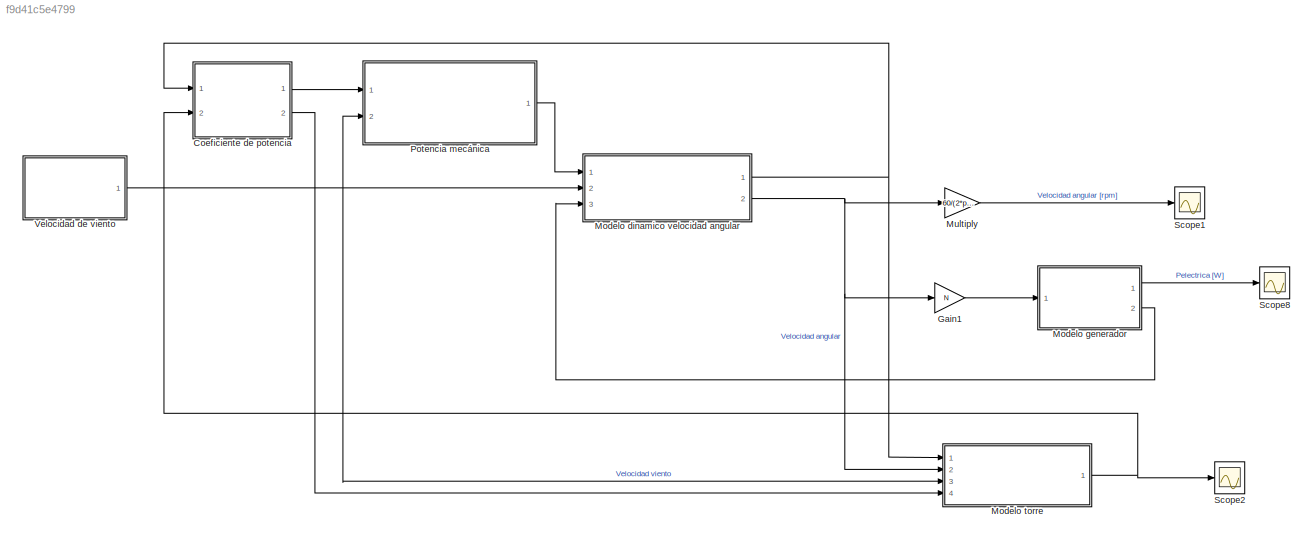
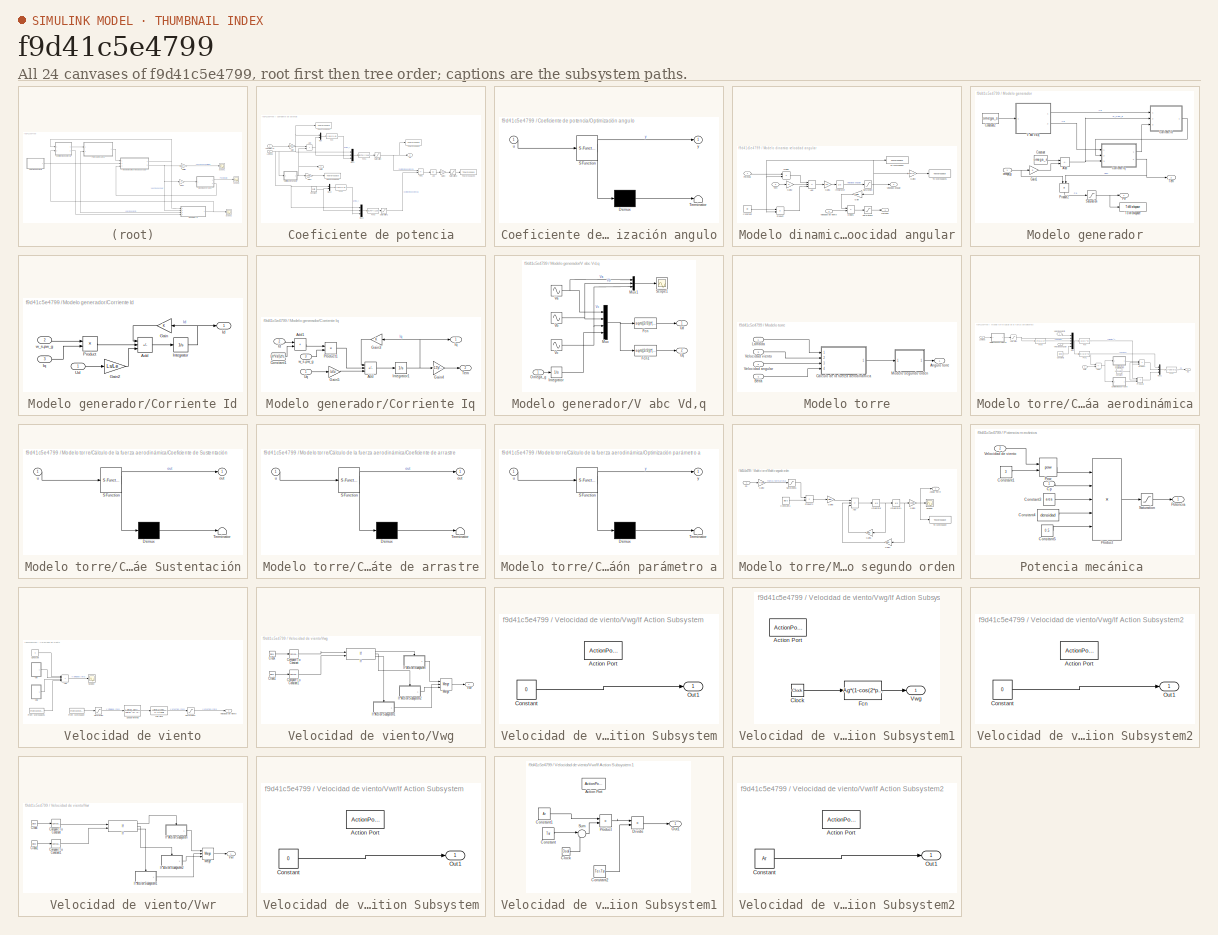
[diagram: thumbnail index - all 24 canvases of the model, root first then tree order]
MODEL slx_f9d41c5e4799
KIND model
CONFIG AbsTol = auto
CONFIG EnableMultiTasking = off
CONFIG FixedStep = auto
CONFIG MaxStep = 0.001
CONFIG MinStep = auto
CONFIG RelTol = 1e-7
CONFIG SampleTimeConstraint = Unconstrained
CONFIG SolverName = VariableStepAuto
CONFIG StartTime = 0.0
CONFIG StopTime = 1800
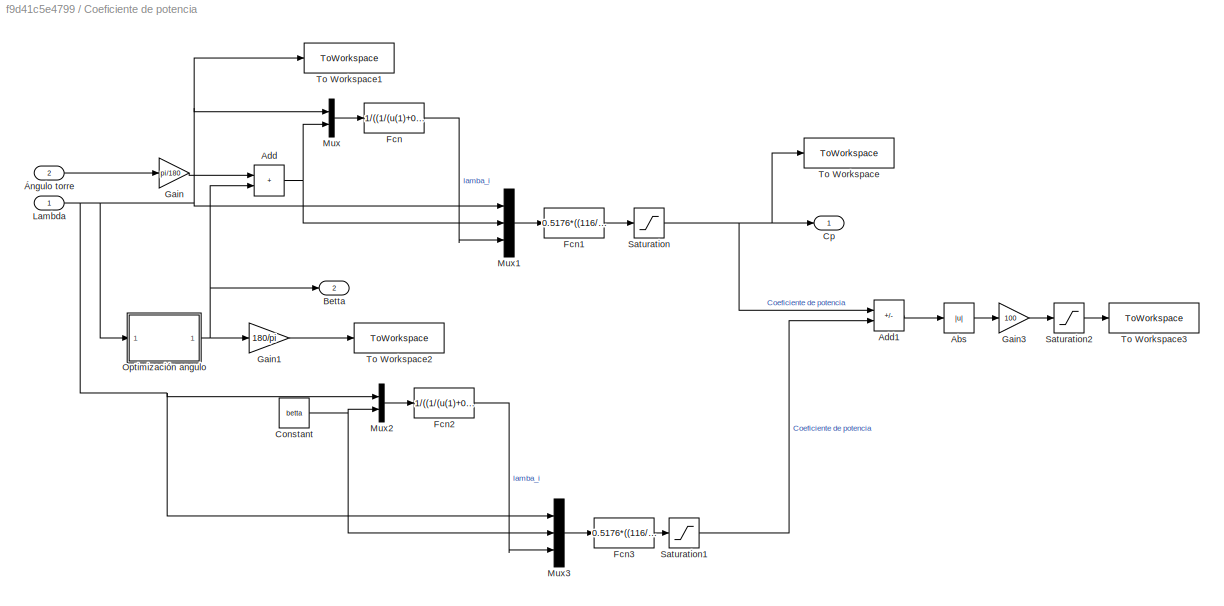
BLOCK [SubSystem] Coeficiente de potencia
  Ports = [2, 2]
  RequestExecContextInheritance = off
BLOCK [Abs] Coeficiente de potencia/Abs
  SaturateOnIntegerOverflow = off
BLOCK [Sum] Coeficiente de potencia/Add
  IconShape = rectangular
  Ports = [2, 1]
BLOCK [Sum] Coeficiente de potencia/Add1
  IconShape = rectangular
  Inputs = +-
  Ports = [2, 1]
BLOCK [Outport] Coeficiente de potencia/Betta
  Port = 2
BLOCK [Constant] Coeficiente de potencia/Constant
  Value = betta
BLOCK [Outport] Coeficiente de potencia/Cp
BLOCK [Fcn] Coeficiente de potencia/Fcn
  Expr = 1/((1/(u(1)+0.08*u(2)))-(0.035/(1+u(2)^3)))
BLOCK [Fcn] Coeficiente de potencia/Fcn1
  Expr = 0.5176*((116/u(3))-0.4*u(2)-5)*exp(-21/u(3))+0.0068*u(1)
BLOCK [Fcn] Coeficiente de potencia/Fcn2
  Expr = 1/((1/(u(1)+0.08*u(2)))-(0.035/(1+u(2)^3)))
BLOCK [Fcn] Coeficiente de potencia/Fcn3
  Expr = 0.5176*((116/u(3))-0.4*u(2)-5)*exp(-21/u(3))+0.0068*u(1)
BLOCK [Gain] Coeficiente de potencia/Gain
  Gain = pi/180
BLOCK [Gain] Coeficiente de potencia/Gain1
  Gain = 180/pi
BLOCK [Gain] Coeficiente de potencia/Gain3
  Gain = 100
BLOCK [Inport] Coeficiente de potencia/Lambda
BLOCK [Mux] Coeficiente de potencia/Mux
  DisplayOption = bar
  Inputs = 2
  Ports = [2, 1]
BLOCK [Mux] Coeficiente de potencia/Mux1
  DisplayOption = bar
  Inputs = 3
  Ports = [3, 1]
BLOCK [Mux] Coeficiente de potencia/Mux2
  DisplayOption = bar
  Inputs = 2
  Ports = [2, 1]
BLOCK [Mux] Coeficiente de potencia/Mux3
  DisplayOption = bar
  Inputs = 3
  Ports = [3, 1]
BLOCK [SubSystem] Coeficiente de potencia/Optimización angulo
  ErrorFcn = Stateflow.Translate.translate
  PermitHierarchicalResolution = ExplicitOnly
  Ports = [1, 1]
  RequestExecContextInheritance = off
  SFBlockType = MATLAB Function
  TreatAsAtomicUnit = on
BLOCK [Demux] Coeficiente de potencia/Optimización angulo/ Demux 
  Outputs = 1
  Ports = [1, 1]
BLOCK [S-Function] Coeficiente de potencia/Optimización angulo/ SFunction 
  EnableBusSupport = on
  FunctionName = sf_sfun
  PortCounts = [1 2]
  Ports = [1, 2]
  SFcnIsStateOwnerBlock = off
  SFunctionDeploymentMode = off
  Tag = Stateflow S-Function 1
BLOCK [Terminator] Coeficiente de potencia/Optimización angulo/ Terminator 
BLOCK [Inport] Coeficiente de potencia/Optimización angulo/u
BLOCK [Outport] Coeficiente de potencia/Optimización angulo/y
BLOCK [Saturate] Coeficiente de potencia/Saturation
  LowerLimit = 0
  UpperLimit = 0.6
BLOCK [Saturate] Coeficiente de potencia/Saturation1
  LowerLimit = 0
  UpperLimit = 0.6
BLOCK [Saturate] Coeficiente de potencia/Saturation2
  LowerLimit = 0
  UpperLimit = 0.3
BLOCK [ToWorkspace] Coeficiente de potencia/To Workspace
  FixptAsFi = on
  MaxDataPoints = inf
  Ports = [1]
  SampleTime = -1
  SaveFormat = Timeseries
  VariableName = cp
BLOCK [ToWorkspace] Coeficiente de potencia/To Workspace1
  FixptAsFi = on
  MaxDataPoints = inf
  Ports = [1]
  SampleTime = -1
  SaveFormat = Timeseries
  VariableName = lambda
BLOCK [ToWorkspace] Coeficiente de potencia/To Workspace2
  FixptAsFi = on
  MaxDataPoints = inf
  Ports = [1]
  SampleTime = -1
  SaveFormat = Timeseries
  VariableName = angulopala
BLOCK [ToWorkspace] Coeficiente de potencia/To Workspace3
  FixptAsFi = on
  MaxDataPoints = inf
  Ports = [1]
  SampleTime = -1
  SaveFormat = Timeseries
  VariableName = ganancia
BLOCK [Inport] Coeficiente de potencia/Ángulo torre
  Port = 2
BLOCK [Gain] Gain1
  Gain = N
BLOCK [SubSystem] Modelo dinamico velocidad angular
  Ports = [3, 2]
  RequestExecContextInheritance = off
BLOCK [Sum] Modelo dinamico velocidad angular/Add
  IconShape = rectangular
  Inputs = +--
  Ports = [3, 1]
BLOCK [Constant] Modelo dinamico velocidad angular/Constant
  Value = Bt
BLOCK [Product] Modelo dinamico velocidad angular/Divide
  Inputs = */
  Ports = [2, 1]
BLOCK [Product] Modelo dinamico velocidad angular/Divide1
  Inputs = */
  Ports = [2, 1]
BLOCK [Gain] Modelo dinamico velocidad angular/Gain
  Gain = radio
  NameLocation = top
BLOCK [Gain] Modelo dinamico velocidad angular/Gain1
  Gain = 1/Jt
BLOCK [Gain] Modelo dinamico velocidad angular/Gain2
  Gain = N
BLOCK [Gain] Modelo dinamico velocidad angular/Gain3
  Gain = 60/(2*pi)
BLOCK [Integrator] Modelo dinamico velocidad angular/Integrator
  InitialCondition = 0.1
  Ports = [1, 1]
BLOCK [Outport] Modelo dinamico velocidad angular/Lambda
BLOCK [Inport] Modelo dinamico velocidad angular/Potencia
BLOCK [Product] Modelo dinamico velocidad angular/Product
  Ports = [2, 1]
BLOCK [Saturate] Modelo dinamico velocidad angular/Saturation
  LowerLimit = 0.0001
  UpperLimit = 6
BLOCK [Saturate] Modelo dinamico velocidad angular/Saturation1
  LowerLimit = 0
  UpperLimit = 30
BLOCK [Inport] Modelo dinamico velocidad angular/Tem
  Port = 3
BLOCK [ToWorkspace] Modelo dinamico velocidad angular/To Workspace
  FixptAsFi = on
  MaxDataPoints = inf
  Ports = [1]
  SampleTime = -1
  SaveFormat = Timeseries
  VariableName = velocidad
BLOCK [ToWorkspace] Modelo dinamico velocidad angular/To Workspace1
  FixptAsFi = on
  MaxDataPoints = inf
  Ports = [1]
  SampleTime = -1
  SaveFormat = Timeseries
  VariableName = velocidadrpm
BLOCK [Outport] Modelo dinamico velocidad angular/Velocidad angular
  Port = 2
BLOCK [Inport] Modelo dinamico velocidad angular/Velocidad de viento
  Port = 2
BLOCK [SubSystem] Modelo generador
  Ports = [1, 2]
  RequestExecContextInheritance = off
BLOCK [Sum] Modelo generador/Add
  IconShape = rectangular
  Inputs = +-
  Ports = [2, 1]
BLOCK [Constant] Modelo generador/Constant
  Value = omega_s
BLOCK [Constant] Modelo generador/Constant2
  Value = omega_s
BLOCK [SubSystem] Modelo generador/Corriente Id
  Ports = [3, 1]
  RequestExecContextInheritance = off
BLOCK [Sum] Modelo generador/Corriente Id/Add
  IconShape = rectangular
  Inputs = -++
  Ports = [3, 1]
BLOCK [Gain] Modelo generador/Corriente Id/Gain
  Gain = K
  NameLocation = top
BLOCK [Gain] Modelo generador/Corriente Id/Gain2
  Gain = Ls/Le
BLOCK [Outport] Modelo generador/Corriente Id/Id
BLOCK [Integrator] Modelo generador/Corriente Id/Integrator
  Ports = [1, 1]
BLOCK [Inport] Modelo generador/Corriente Id/Iq
  Port = 3
BLOCK [Product] Modelo generador/Corriente Id/Product
  Ports = [2, 1]
BLOCK [Inport] Modelo generador/Corriente Id/Ud
BLOCK [Inport] Modelo generador/Corriente Id/w_s-pw_g
  Port = 2
BLOCK [SubSystem] Modelo generador/Corriente Iq
  Ports = [3, 2]
  RequestExecContextInheritance = off
BLOCK [Sum] Modelo generador/Corriente Iq/Add
  IconShape = rectangular
  Inputs = --+
  Ports = [3, 1]
BLOCK [Sum] Modelo generador/Corriente Iq/Add1
  IconShape = rectangular
  Ports = [2, 1]
BLOCK [Constant] Modelo generador/Corriente Iq/Constant1
  Value = Lm*Vs/(Le*omega_s)
BLOCK [Gain] Modelo generador/Corriente Iq/Gain3
  Gain = K
  NameLocation = top
BLOCK [Gain] Modelo generador/Corriente Iq/Gain4
  Gain = -1.5*p*Vs*Lm/(omega_s*Ls)
BLOCK [Gain] Modelo generador/Corriente Iq/Gain5
  Gain = Ls/Le
BLOCK [Inport] Modelo generador/Corriente Iq/Id
  NameLocation = top
  Port = 2
BLOCK [Integrator] Modelo generador/Corriente Iq/Integrator1
  Ports = [1, 1]
BLOCK [Outport] Modelo generador/Corriente Iq/Iq
BLOCK [Product] Modelo generador/Corriente Iq/Product1
  Ports = [2, 1]
BLOCK [Outport] Modelo generador/Corriente Iq/Tem
  Port = 2
BLOCK [Inport] Modelo generador/Corriente Iq/Uq
BLOCK [Inport] Modelo generador/Corriente Iq/w_s-pw_g
  Port = 3
BLOCK [Gain] Modelo generador/Gain1
  Gain = p
BLOCK [Outport] Modelo generador/Pe
BLOCK [Product] Modelo generador/Product2
  NameLocation = left
  Ports = [2, 1]
BLOCK [Saturate] Modelo generador/Saturation
  LowerLimit = 0
  UpperLimit = 100e6
BLOCK [Outport] Modelo generador/Tem
  Port = 2
BLOCK [ToWorkspace] Modelo generador/To Workspace
  FixptAsFi = on
  MaxDataPoints = inf
  Ports = [1]
  SampleTime = -1
  SaveFormat = Timeseries
  VariableName = potencia
BLOCK [SubSystem] Modelo generador/V abc Vd,q
  Ports = [1, 2]
  RequestExecContextInheritance = off
BLOCK [Fcn] Modelo generador/V abc Vd,q/Fcn
  Expr = sqrt((2/3))*(u(1)*cos(u(4))+u(2)*cos(u(4)-2*pi/3)+u(3)*cos(u(4)+2*pi/3))
BLOCK [Fcn] Modelo generador/V abc Vd,q/Fcn1
  Expr = sqrt((2/3))*(-u(1)*sin(u(4))-u(2)*sin(u(4)-2*pi/3)-u(3)*sin(u(4)+2*pi/3))
BLOCK [Integrator] Modelo generador/V abc Vd,q/Integrator
  Ports = [1, 1]
BLOCK [Mux] Modelo generador/V abc Vd,q/Mux
  DisplayOption = bar
  Ports = [4, 1]
BLOCK [Mux] Modelo generador/V abc Vd,q/Mux1
  DisplayOption = bar
  Inputs = 3
  Ports = [3, 1]
BLOCK [Inport] Modelo generador/V abc Vd,q/Omega_g
BLOCK [Scope] Modelo generador/V abc Vd,q/Scope1
  Floating = off
  NumInputPorts = 1
  Ports = [1]
  ScopeSpecificationString = Simulink.scopes.TimeScopeBlockCfg('CurrentConfiguration', extmgr.ConfigurationSet(extmgr.Configuration('Core','General UI',true,'FigureColor',[1 1 1]),extmgr.Configuration('Core','Source UI',true),extmgr.Configuration('Sources','WiredSimulink',true,'DataLoggingVariableName','ScopeData1'),extmgr.Configuration('Visuals','Time Domain',true,'TimeAxisLabels','All','SerializedDisplays',{struct('MinYLimR...<+1588ch>
BLOCK [Outport] Modelo generador/V abc Vd,q/Ud
BLOCK [Outport] Modelo generador/V abc Vd,q/Uq
  Port = 2
BLOCK [Sin] Modelo generador/V abc Vd,q/Va
  Amplitude = Vs
  Frequency = omega_s
  Ports = [0, 1]
  SampleTime = 0
BLOCK [Sin] Modelo generador/V abc Vd,q/Vb
  Amplitude = Vs
  Frequency = omega_s
  Phase = -2*pi/3
  Ports = [0, 1]
  SampleTime = 0
BLOCK [Sin] Modelo generador/V abc Vd,q/Vc
  Amplitude = Vs
  Frequency = omega_s
  Phase = 2*pi/3
  Ports = [0, 1]
  SampleTime = 0
BLOCK [Inport] Modelo generador/omega_g
BLOCK [SubSystem] Modelo torre
  Ports = [4, 1]
  RequestExecContextInheritance = off
BLOCK [Inport] Modelo torre/Betta
  Port = 4
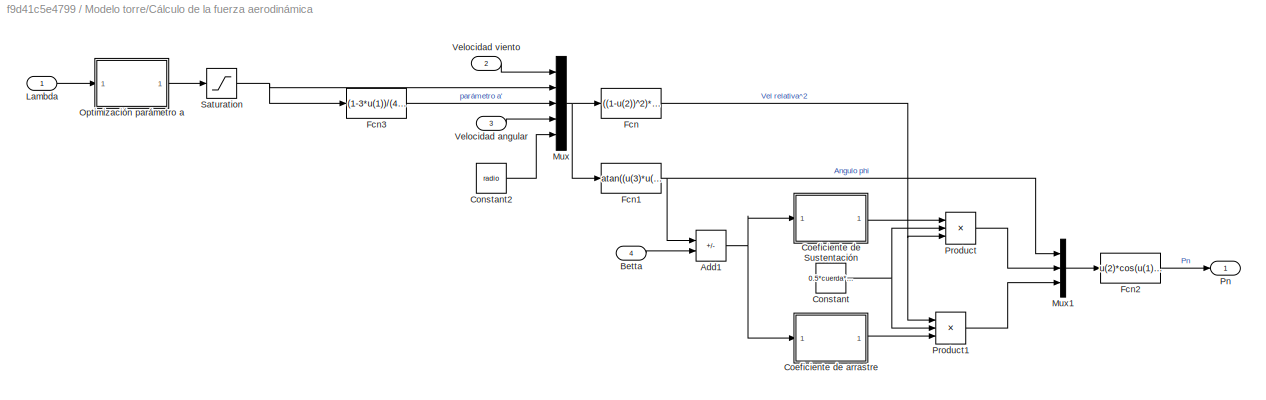
BLOCK [SubSystem] Modelo torre/Cálculo de la fuerza aerodinámica
  Ports = [4, 1]
  RequestExecContextInheritance = off
BLOCK [Sum] Modelo torre/Cálculo de la fuerza aerodinámica/Add1
  IconShape = rectangular
  Inputs = +-
  Ports = [2, 1]
BLOCK [Inport] Modelo torre/Cálculo de la fuerza aerodinámica/Betta
  Port = 4
BLOCK [SubSystem] Modelo torre/Cálculo de la fuerza aerodinámica/Coeficiente de Sustentación
  ErrorFcn = Stateflow.Translate.translate
  PermitHierarchicalResolution = ExplicitOnly
  Ports = [1, 1]
  RequestExecContextInheritance = off
  SFBlockType = MATLAB Function
  TreatAsAtomicUnit = on
BLOCK [Demux] Modelo torre/Cálculo de la fuerza aerodinámica/Coeficiente de Sustentación/ Demux 
  Outputs = 1
  Ports = [1, 1]
BLOCK [S-Function] Modelo torre/Cálculo de la fuerza aerodinámica/Coeficiente de Sustentación/ SFunction 
  EnableBusSupport = on
  FunctionName = sf_sfun
  PortCounts = [1 2]
  Ports = [1, 2]
  SFcnIsStateOwnerBlock = off
  SFunctionDeploymentMode = off
  Tag = Stateflow S-Function 3
BLOCK [Terminator] Modelo torre/Cálculo de la fuerza aerodinámica/Coeficiente de Sustentación/ Terminator 
BLOCK [Outport] Modelo torre/Cálculo de la fuerza aerodinámica/Coeficiente de Sustentación/out
BLOCK [Inport] Modelo torre/Cálculo de la fuerza aerodinámica/Coeficiente de Sustentación/u
BLOCK [SubSystem] Modelo torre/Cálculo de la fuerza aerodinámica/Coeficiente de arrastre
  ErrorFcn = Stateflow.Translate.translate
  PermitHierarchicalResolution = ExplicitOnly
  Ports = [1, 1]
  RequestExecContextInheritance = off
  SFBlockType = MATLAB Function
  TreatAsAtomicUnit = on
BLOCK [Demux] Modelo torre/Cálculo de la fuerza aerodinámica/Coeficiente de arrastre/ Demux 
  Outputs = 1
  Ports = [1, 1]
BLOCK [S-Function] Modelo torre/Cálculo de la fuerza aerodinámica/Coeficiente de arrastre/ SFunction 
  EnableBusSupport = on
  FunctionName = sf_sfun
  PortCounts = [1 2]
  Ports = [1, 2]
  SFcnIsStateOwnerBlock = off
  SFunctionDeploymentMode = off
  Tag = Stateflow S-Function 4
BLOCK [Terminator] Modelo torre/Cálculo de la fuerza aerodinámica/Coeficiente de arrastre/ Terminator 
BLOCK [Outport] Modelo torre/Cálculo de la fuerza aerodinámica/Coeficiente de arrastre/out
BLOCK [Inport] Modelo torre/Cálculo de la fuerza aerodinámica/Coeficiente de arrastre/u
BLOCK [Constant] Modelo torre/Cálculo de la fuerza aerodinámica/Constant
  Value = 0.5*cuerda*densidad
BLOCK [Constant] Modelo torre/Cálculo de la fuerza aerodinámica/Constant2
  Value = radio
BLOCK [Fcn] Modelo torre/Cálculo de la fuerza aerodinámica/Fcn
  Expr = ((1-u(2))^2)*(u(1))^2+((1+u(3))^2)*(u(4)*u(5))^2
BLOCK [Fcn] Modelo torre/Cálculo de la fuerza aerodinámica/Fcn1
  Expr = atan((u(3)*u(4)*u(5))/(u(2)*u(1)))
BLOCK [Fcn] Modelo torre/Cálculo de la fuerza aerodinámica/Fcn2
  Expr = u(2)*cos(u(1))+u(3)*sin(u(1))
BLOCK [Fcn] Modelo torre/Cálculo de la fuerza aerodinámica/Fcn3
  Expr = (1-3*u(1))/(4*u(1)-1)
BLOCK [Inport] Modelo torre/Cálculo de la fuerza aerodinámica/Lambda
BLOCK [Mux] Modelo torre/Cálculo de la fuerza aerodinámica/Mux
  DisplayOption = bar
  Inputs = 5
  Ports = [5, 1]
BLOCK [Mux] Modelo torre/Cálculo de la fuerza aerodinámica/Mux1
  DisplayOption = bar
  Inputs = 3
  Ports = [3, 1]
BLOCK [SubSystem] Modelo torre/Cálculo de la fuerza aerodinámica/Optimización parámetro a
  ErrorFcn = Stateflow.Translate.translate
  PermitHierarchicalResolution = ExplicitOnly
  Ports = [1, 1]
  RequestExecContextInheritance = off
  SFBlockType = MATLAB Function
  TreatAsAtomicUnit = on
BLOCK [Demux] Modelo torre/Cálculo de la fuerza aerodinámica/Optimización parámetro a/ Demux 
  Outputs = 1
  Ports = [1, 1]
BLOCK [S-Function] Modelo torre/Cálculo de la fuerza aerodinámica/Optimización parámetro a/ SFunction 
  EnableBusSupport = on
  FunctionName = sf_sfun
  PortCounts = [1 2]
  Ports = [1, 2]
  SFcnIsStateOwnerBlock = off
  SFunctionDeploymentMode = off
  Tag = Stateflow S-Function 2
BLOCK [Terminator] Modelo torre/Cálculo de la fuerza aerodinámica/Optimización parámetro a/ Terminator 
BLOCK [Inport] Modelo torre/Cálculo de la fuerza aerodinámica/Optimización parámetro a/u
BLOCK [Outport] Modelo torre/Cálculo de la fuerza aerodinámica/Optimización parámetro a/y
BLOCK [Outport] Modelo torre/Cálculo de la fuerza aerodinámica/Pn
BLOCK [Product] Modelo torre/Cálculo de la fuerza aerodinámica/Product
  Inputs = 3
  Ports = [3, 1]
BLOCK [Product] Modelo torre/Cálculo de la fuerza aerodinámica/Product1
  Inputs = 3
  Ports = [3, 1]
BLOCK [Saturate] Modelo torre/Cálculo de la fuerza aerodinámica/Saturation
  LowerLimit = 0.001
  UpperLimit = 1
BLOCK [Inport] Modelo torre/Cálculo de la fuerza aerodinámica/Velocidad angular
  Port = 3
BLOCK [Inport] Modelo torre/Cálculo de la fuerza aerodinámica/Velocidad viento
  Port = 2
BLOCK [Inport] Modelo torre/Lambda
BLOCK [SubSystem] Modelo torre/Modelo segundo orden
  Ports = [1, 1]
  RequestExecContextInheritance = off
BLOCK [Sum] Modelo torre/Modelo segundo orden/Add
  IconShape = rectangular
  Inputs = +--
  Ports = [3, 1]
BLOCK [Constant] Modelo torre/Modelo segundo orden/Constant1
  Value = altura
BLOCK [Gain] Modelo torre/Modelo segundo orden/Gain2
  Gain = 3*radio
BLOCK [Gain] Modelo torre/Modelo segundo orden/Gain3
  Gain = 180/pi
BLOCK [Gain] Modelo torre/Modelo segundo orden/Gain4
  Gain = ktotal/Itotal
  NameLocation = top
BLOCK [Gain] Modelo torre/Modelo segundo orden/Gain5
  Gain = dtotal/Itotal
  NameLocation = top
BLOCK [Gain] Modelo torre/Modelo segundo orden/Gain6
  Gain = 1/Itotal
BLOCK [Integrator] Modelo torre/Modelo segundo orden/Integrator
  Ports = [1, 1]
BLOCK [Integrator] Modelo torre/Modelo segundo orden/Integrator1
  Ports = [1, 1]
BLOCK [Inport] Modelo torre/Modelo segundo orden/Pn
BLOCK [Product] Modelo torre/Modelo segundo orden/Product2
  Ports = [2, 1]
BLOCK [Saturate] Modelo torre/Modelo segundo orden/Saturation1
  LowerLimit = 0
  UpperLimit = 1e9
BLOCK [Scope] Modelo torre/Modelo segundo orden/Scope5
  Floating = off
  NumInputPorts = 1
  Ports = [1]
  ScopeSpecificationString = Simulink.scopes.TimeScopeBlockCfg('CurrentConfiguration', extmgr.ConfigurationSet(extmgr.Configuration('Core','General UI',true,'FigureColor',[1 1 1]),extmgr.Configuration('Core','Source UI',true),extmgr.Configuration('Sources','WiredSimulink',true,'DataLoggingVariableName','ScopeData5'),extmgr.Configuration('Visuals','Time Domain',true,'TimeAxisLabels','All','SerializedDisplays',{struct('MinYLimR...<+1645ch>
BLOCK [ToWorkspace] Modelo torre/Modelo segundo orden/To Workspace
  FixptAsFi = on
  MaxDataPoints = inf
  Ports = [1]
  SampleTime = -1
  SaveFormat = Timeseries
  VariableName = angulotorre
BLOCK [Outport] Modelo torre/Modelo segundo orden/Ángulo Torre
BLOCK [Inport] Modelo torre/Velocidad angular
  Port = 2
BLOCK [Inport] Modelo torre/Velocidad viento
  Port = 3
BLOCK [Outport] Modelo torre/Ángulo torre
BLOCK [Gain] Multiply
  Gain = 60/(2*pi)
BLOCK [SubSystem] Potencia mecánica 
  Ports = [2, 1]
  RequestExecContextInheritance = off
BLOCK [Constant] Potencia mecánica /Constant1
  Value = 3
BLOCK [Constant] Potencia mecánica /Constant3
  Value = area
BLOCK [Constant] Potencia mecánica /Constant4
  Value = densidad
BLOCK [Constant] Potencia mecánica /Constant5
  Value = 0.5
BLOCK [Inport] Potencia mecánica /Cp
BLOCK [Outport] Potencia mecánica /Potencia
BLOCK [Math] Potencia mecánica /Pow
  Operator = pow
  Ports = [2, 1]
  RndMeth = Zero
  SignedPower = on
BLOCK [Product] Potencia mecánica /Product
  Inputs = 5
  Ports = [5, 1]
BLOCK [Saturate] Potencia mecánica /Saturation
  LowerLimit = 0
  UpperLimit = 10e6
BLOCK [Inport] Potencia mecánica /Velocidad de viento
  Port = 2
BLOCK [Scope] Scope1
  Floating = off
  NumInputPorts = 1
  Ports = [1]
  ScopeSpecificationString = Simulink.scopes.TimeScopeBlockCfg('CurrentConfiguration', extmgr.ConfigurationSet(extmgr.Configuration('Core','General UI',true,'FigureColor',[1 1 1]),extmgr.Configuration('Core','Source UI',true),extmgr.Configuration('Sources','WiredSimulink',true,'DataLoggingVariableName','ScopeData1'),extmgr.Configuration('Visuals','Time Domain',true,'SerializedDisplays',{struct('MinYLimReal','-2.13473','MaxYLi...<+1538ch>
BLOCK [Scope] Scope2
  Floating = off
  NumInputPorts = 1
  Ports = [1]
  ScopeSpecificationString = Simulink.scopes.TimeScopeBlockCfg('CurrentConfiguration', extmgr.ConfigurationSet(extmgr.Configuration('Core','General UI',true),extmgr.Configuration('Core','Source UI',true),extmgr.Configuration('Sources','WiredSimulink',true,'DataLoggingVariableName','ScopeData1'),extmgr.Configuration('Visuals','Time Domain',true,'SerializedDisplays',{struct('MinYLimReal','-0.66939','MaxYLimReal','2.84648','YLab...<+1406ch>
BLOCK [Scope] Scope8
  Floating = off
  NumInputPorts = 1
  Ports = [1]
  ScopeSpecificationString = Simulink.scopes.TimeScopeBlockCfg('CurrentConfiguration', extmgr.ConfigurationSet(extmgr.Configuration('Core','General UI',true,'FigureColor',[1 1 1]),extmgr.Configuration('Core','Source UI',true),extmgr.Configuration('Sources','WiredSimulink',true,'DataLoggingVariableName','ScopeData2'),extmgr.Configuration('Visuals','Time Domain',true,'SerializedDisplays',{struct('MinYLimReal','-162208.60467','M...<+1590ch>
BLOCK [SubSystem] Velocidad de viento
  Ports = [0, 1]
  RequestExecContextInheritance = off
BLOCK [Sum] Velocidad de viento/Add
  IconShape = rectangular
  Inputs = ++++
  Ports = [4, 1]
BLOCK [Constant] Velocidad de viento/Constant
  Value = v
BLOCK [FromWorkspace] Velocidad de viento/From Workspace
  Interpolate = off
  OutputAfterFinalValue = Setting to zero
  SampleTime = 1
  VariableName = wave
BLOCK [FromWorkspace] Velocidad de viento/From Workspace1
  Interpolate = off
  OutputAfterFinalValue = Setting to zero
  SampleTime = 1
  VariableName = turbulent
BLOCK [TransferFcn] Velocidad de viento/Lag filter
  Denominator = [1 1/thaui]
  Numerator = [alfai 1/thaui]
BLOCK [Saturate] Velocidad de viento/Saturation
  LowerLimit = 0
  UpperLimit = 50
BLOCK [Saturate] Velocidad de viento/Saturation1
  LowerLimit = 0.0001
  UpperLimit = 50
BLOCK [Scope] Velocidad de viento/Scope2
  Floating = off
  NumInputPorts = 1
  Ports = [1]
  ScopeSpecificationString = Simulink.scopes.TimeScopeBlockCfg('CurrentConfiguration', extmgr.ConfigurationSet(extmgr.Configuration('Core','General UI',true,'FigureColor',[1 1 1]),extmgr.Configuration('Core','Source UI',true),extmgr.Configuration('Sources','WiredSimulink',true,'DataLoggingVariableName','ScopeData1'),extmgr.Configuration('Visuals','Time Domain',true,'SerializedDisplays',{struct('MinYLimReal','5.30247','MaxYLim...<+1719ch>
BLOCK [TransferFcn] Velocidad de viento/Spacial filtering
  Denominator = [betaf^(2) (sqrt(2/alfa)+sqrt(alfa))*betaf sqrt(2)]
  Numerator = [ betaf sqrt(2)]
BLOCK [Outport] Velocidad de viento/Velocidad de viento
BLOCK [SubSystem] Velocidad de viento/Vwg
  Ports = [0, 1]
  RequestExecContextInheritance = off
BLOCK [Clock] Velocidad de viento/Vwg/Clock
BLOCK [Clock] Velocidad de viento/Vwg/Clock1
BLOCK [Reference] Velocidad de viento/Vwg/Compare To Constant  REF=simulink/Logic and Bit
Operations/Compare
To Constant
  Ports = [1, 1]
  SourceBlock = simulink/Logic and Bit\nOperations/Compare\nTo Constant
  SourceProductBaseCode = SL
  SourceType = Compare To Constant
BLOCK [Reference] Velocidad de viento/Vwg/Compare To Constant1  REF=simulink/Logic and Bit
Operations/Compare
To Constant
  Ports = [1, 1]
  SourceBlock = simulink/Logic and Bit\nOperations/Compare\nTo Constant
  SourceProductBaseCode = SL
  SourceType = Compare To Constant
BLOCK [If] Velocidad de viento/Vwg/If
  ElseIfExpressions = u2 == 1
  IfExpression = u1 == 1
  NumInputs = 2
  Ports = [2, 3]
BLOCK [SubSystem] Velocidad de viento/Vwg/If Action Subsystem
  Ports = [0, 1, 0, 0, 0, 0, 0, 1]
  RequestExecContextInheritance = off
  TreatAsAtomicUnit = on
BLOCK [ActionPort] Velocidad de viento/Vwg/If Action Subsystem/Action Port
  ActionPortLabel = if(u1 == 1)
BLOCK [Constant] Velocidad de viento/Vwg/If Action Subsystem/Constant
  Value = 0
BLOCK [Outport] Velocidad de viento/Vwg/If Action Subsystem/Out1
BLOCK [SubSystem] Velocidad de viento/Vwg/If Action Subsystem1
  Ports = [0, 1, 0, 0, 0, 0, 0, 1]
  RequestExecContextInheritance = off
  TreatAsAtomicUnit = on
BLOCK [ActionPort] Velocidad de viento/Vwg/If Action Subsystem1/Action Port
  ActionPortLabel = else
BLOCK [Clock] Velocidad de viento/Vwg/If Action Subsystem1/Clock
BLOCK [Fcn] Velocidad de viento/Vwg/If Action Subsystem1/Fcn
  Expr = Ag*(1-cos(2*pi*((u(1)-Tsg)/Teg-Tsg)))
BLOCK [Outport] Velocidad de viento/Vwg/If Action Subsystem1/Vwg
BLOCK [SubSystem] Velocidad de viento/Vwg/If Action Subsystem2
  Ports = [0, 1, 0, 0, 0, 0, 0, 1]
  RequestExecContextInheritance = off
  TreatAsAtomicUnit = on
BLOCK [ActionPort] Velocidad de viento/Vwg/If Action Subsystem2/Action Port
  ActionPortLabel = elseif(u2 == 1)
BLOCK [Constant] Velocidad de viento/Vwg/If Action Subsystem2/Constant
  Value = 0
BLOCK [Outport] Velocidad de viento/Vwg/If Action Subsystem2/Out1
BLOCK [Merge] Velocidad de viento/Vwg/Merge
  Inputs = 3
  Ports = [3, 1]
BLOCK [Outport] Velocidad de viento/Vwg/Vwr
BLOCK [SubSystem] Velocidad de viento/Vwr
  Ports = [0, 1]
  RequestExecContextInheritance = off
BLOCK [Clock] Velocidad de viento/Vwr/Clock
BLOCK [Clock] Velocidad de viento/Vwr/Clock1
BLOCK [Reference] Velocidad de viento/Vwr/Compare To Constant  REF=simulink/Logic and Bit
Operations/Compare
To Constant
  Ports = [1, 1]
  SourceBlock = simulink/Logic and Bit\nOperations/Compare\nTo Constant
  SourceProductBaseCode = SL
  SourceType = Compare To Constant
BLOCK [Reference] Velocidad de viento/Vwr/Compare To Constant1  REF=simulink/Logic and Bit
Operations/Compare
To Constant
  Ports = [1, 1]
  SourceBlock = simulink/Logic and Bit\nOperations/Compare\nTo Constant
  SourceProductBaseCode = SL
  SourceType = Compare To Constant
BLOCK [If] Velocidad de viento/Vwr/If
  ElseIfExpressions = u2 == 1
  IfExpression = u1 == 1
  NumInputs = 2
  Ports = [2, 3]
BLOCK [SubSystem] Velocidad de viento/Vwr/If Action Subsystem
  Ports = [0, 1, 0, 0, 0, 0, 0, 1]
  RequestExecContextInheritance = off
  TreatAsAtomicUnit = on
BLOCK [ActionPort] Velocidad de viento/Vwr/If Action Subsystem/Action Port
  ActionPortLabel = if(u1 == 1)
BLOCK [Constant] Velocidad de viento/Vwr/If Action Subsystem/Constant
  Value = 0
BLOCK [Outport] Velocidad de viento/Vwr/If Action Subsystem/Out1
BLOCK [SubSystem] Velocidad de viento/Vwr/If Action Subsystem1
  Ports = [0, 1, 0, 0, 0, 0, 0, 1]
  RequestExecContextInheritance = off
  TreatAsAtomicUnit = on
BLOCK [ActionPort] Velocidad de viento/Vwr/If Action Subsystem1/Action Port
  ActionPortLabel = else
BLOCK [Clock] Velocidad de viento/Vwr/If Action Subsystem1/Clock
BLOCK [Constant] Velocidad de viento/Vwr/If Action Subsystem1/Constant
  Value = Tsr
BLOCK [Constant] Velocidad de viento/Vwr/If Action Subsystem1/Constant1
  Value = Ar
BLOCK [Constant] Velocidad de viento/Vwr/If Action Subsystem1/Constant2
  Value = Ter-Tsr
BLOCK [Product] Velocidad de viento/Vwr/If Action Subsystem1/Divide
  Inputs = */
  Ports = [2, 1]
BLOCK [Outport] Velocidad de viento/Vwr/If Action Subsystem1/Out1
BLOCK [Product] Velocidad de viento/Vwr/If Action Subsystem1/Product
  Ports = [2, 1]
BLOCK [Sum] Velocidad de viento/Vwr/If Action Subsystem1/Sum
  Inputs = |-+
  Ports = [2, 1]
BLOCK [SubSystem] Velocidad de viento/Vwr/If Action Subsystem2
  Ports = [0, 1, 0, 0, 0, 0, 0, 1]
  RequestExecContextInheritance = off
  TreatAsAtomicUnit = on
BLOCK [ActionPort] Velocidad de viento/Vwr/If Action Subsystem2/Action Port
  ActionPortLabel = elseif(u2 == 1)
BLOCK [Constant] Velocidad de viento/Vwr/If Action Subsystem2/Constant
  Value = Ar
BLOCK [Outport] Velocidad de viento/Vwr/If Action Subsystem2/Out1
BLOCK [Merge] Velocidad de viento/Vwr/Merge
  Inputs = 3
  Ports = [3, 1]
BLOCK [Outport] Velocidad de viento/Vwr/Vwr
LINE Coeficiente de potencia/Abs:1 -> Coeficiente de potencia/Gain3:1
LINE Coeficiente de potencia/Add1:1 -> Coeficiente de potencia/Abs:1
NET Coeficiente de potencia/Add:1 -> Coeficiente de potencia/Mux1:2, Coeficiente de potencia/Mux:2
NET Coeficiente de potencia/Constant:1 -> Coeficiente de potencia/Mux2:2, Coeficiente de potencia/Mux3:2
LINE Coeficiente de potencia/Fcn1:1 -> Coeficiente de potencia/Saturation:1
LINE Coeficiente de potencia/Fcn2:1 -> Coeficiente de potencia/Mux3:3
LINE Coeficiente de potencia/Fcn3:1 -> Coeficiente de potencia/Saturation1:1
LINE Coeficiente de potencia/Fcn:1 -> Coeficiente de potencia/Mux1:3
LINE Coeficiente de potencia/Gain1:1 -> Coeficiente de potencia/To Workspace2:1
LINE Coeficiente de potencia/Gain3:1 -> Coeficiente de potencia/Saturation2:1
LINE Coeficiente de potencia/Gain:1 -> Coeficiente de potencia/Add:1
NET Coeficiente de potencia/Lambda:1 -> Coeficiente de potencia/Mux1:1, Coeficiente de potencia/Mux2:1, Coeficiente de potencia/Mux3:1, Coeficiente de potencia/Mux:1, Coeficiente de potencia/Optimización angulo:1, Coeficiente de potencia/To Workspace1:1
LINE Coeficiente de potencia/Mux1:1 -> Coeficiente de potencia/Fcn1:1
LINE Coeficiente de potencia/Mux2:1 -> Coeficiente de potencia/Fcn2:1
LINE Coeficiente de potencia/Mux3:1 -> Coeficiente de potencia/Fcn3:1
LINE Coeficiente de potencia/Mux:1 -> Coeficiente de potencia/Fcn:1
NET Coeficiente de potencia/Optimización angulo:1 -> Coeficiente de potencia/Add:2, Coeficiente de potencia/Betta:1, Coeficiente de potencia/Gain1:1
LINE Coeficiente de potencia/Saturation1:1 -> Coeficiente de potencia/Add1:2
LINE Coeficiente de potencia/Saturation2:1 -> Coeficiente de potencia/To Workspace3:1
NET Coeficiente de potencia/Saturation:1 -> Coeficiente de potencia/Add1:1, Coeficiente de potencia/Cp:1, Coeficiente de potencia/To Workspace:1
LINE Coeficiente de potencia/Ángulo torre:1 -> Coeficiente de potencia/Gain:1
LINE Coeficiente de potencia:1 -> Potencia mecánica :1
LINE Coeficiente de potencia:2 -> Modelo torre:4
LINE Gain1:1 -> Modelo generador:1
LINE Modelo dinamico velocidad angular/Add:1 -> Modelo dinamico velocidad angular/Gain1:1
LINE Modelo dinamico velocidad angular/Constant:1 -> Modelo dinamico velocidad angular/Product:1
LINE Modelo dinamico velocidad angular/Divide1:1 -> Modelo dinamico velocidad angular/Saturation1:1
LINE Modelo dinamico velocidad angular/Divide:1 -> Modelo dinamico velocidad angular/Add:1
LINE Modelo dinamico velocidad angular/Gain1:1 -> Modelo dinamico velocidad angular/Integrator:1
LINE Modelo dinamico velocidad angular/Gain2:1 -> Modelo dinamico velocidad angular/Add:2
LINE Modelo dinamico velocidad angular/Gain3:1 -> Modelo dinamico velocidad angular/To Workspace1:1
LINE Modelo dinamico velocidad angular/Gain:1 -> Modelo dinamico velocidad angular/Divide1:1
LINE Modelo dinamico velocidad angular/Integrator:1 -> Modelo dinamico velocidad angular/Saturation:1
LINE Modelo dinamico velocidad angular/Potencia:1 -> Modelo dinamico velocidad angular/Divide:1
LINE Modelo dinamico velocidad angular/Product:1 -> Modelo dinamico velocidad angular/Add:3
LINE Modelo dinamico velocidad angular/Saturation1:1 -> Modelo dinamico velocidad angular/Lambda:1
NET Modelo dinamico velocidad angular/Saturation:1 -> Modelo dinamico velocidad angular/Divide:2, Modelo dinamico velocidad angular/Gain3:1, Modelo dinamico velocidad angular/Gain:1, Modelo dinamico velocidad angular/Product:2, Modelo dinamico velocidad angular/To Workspace:1, Modelo dinamico velocidad angular/Velocidad angular:1
LINE Modelo dinamico velocidad angular/Tem:1 -> Modelo dinamico velocidad angular/Gain2:1
LINE Modelo dinamico velocidad angular/Velocidad de viento:1 -> Modelo dinamico velocidad angular/Divide1:2
NET Modelo dinamico velocidad angular:1 -> Coeficiente de potencia:1, Modelo torre:1
NET Modelo dinamico velocidad angular:2 -> Gain1:1, Modelo torre:2, Multiply:1
NET Modelo generador/Add:1 -> Modelo generador/Corriente Id:2, Modelo generador/Corriente Iq:3
LINE Modelo generador/Constant2:1 -> Modelo generador/V abc Vd,q:1
LINE Modelo generador/Constant:1 -> Modelo generador/Add:1
LINE Modelo generador/Corriente Id/Add:1 -> Modelo generador/Corriente Id/Integrator:1
LINE Modelo generador/Corriente Id/Gain2:1 -> Modelo generador/Corriente Id/Add:3
LINE Modelo generador/Corriente Id/Gain:1 -> Modelo generador/Corriente Id/Add:1
NET Modelo generador/Corriente Id/Integrator:1 -> Modelo generador/Corriente Id/Gain:1, Modelo generador/Corriente Id/Id:1
LINE Modelo generador/Corriente Id/Iq:1 -> Modelo generador/Corriente Id/Product:2
LINE Modelo generador/Corriente Id/Product:1 -> Modelo generador/Corriente Id/Add:2
LINE Modelo generador/Corriente Id/Ud:1 -> Modelo generador/Corriente Id/Gain2:1
LINE Modelo generador/Corriente Id/w_s-pw_g:1 -> Modelo generador/Corriente Id/Product:1
LINE Modelo generador/Corriente Id:1 -> Modelo generador/Corriente Iq:2
LINE Modelo generador/Corriente Iq/Add1:1 -> Modelo generador/Corriente Iq/Product1:1
LINE Modelo generador/Corriente Iq/Add:1 -> Modelo generador/Corriente Iq/Integrator1:1
LINE Modelo generador/Corriente Iq/Constant1:1 -> Modelo generador/Corriente Iq/Add1:2
LINE Modelo generador/Corriente Iq/Gain3:1 -> Modelo generador/Corriente Iq/Add:1
LINE Modelo generador/Corriente Iq/Gain4:1 -> Modelo generador/Corriente Iq/Tem:1
LINE Modelo generador/Corriente Iq/Gain5:1 -> Modelo generador/Corriente Iq/Add:3
LINE Modelo generador/Corriente Iq/Id:1 -> Modelo generador/Corriente Iq/Add1:1
NET Modelo generador/Corriente Iq/Integrator1:1 -> Modelo generador/Corriente Iq/Gain3:1, Modelo generador/Corriente Iq/Gain4:1, Modelo generador/Corriente Iq/Iq:1
LINE Modelo generador/Corriente Iq/Product1:1 -> Modelo generador/Corriente Iq/Add:2
LINE Modelo generador/Corriente Iq/Uq:1 -> Modelo generador/Corriente Iq/Gain5:1
LINE Modelo generador/Corriente Iq/w_s-pw_g:1 -> Modelo generador/Corriente Iq/Product1:2
LINE Modelo generador/Corriente Iq:1 -> Modelo generador/Corriente Id:3
NET Modelo generador/Corriente Iq:2 -> Modelo generador/Product2:2, Modelo generador/Tem:1
LINE Modelo generador/Gain1:1 -> Modelo generador/Add:2
LINE Modelo generador/Product2:1 -> Modelo generador/Saturation:1
NET Modelo generador/Saturation:1 -> Modelo generador/Pe:1, Modelo generador/To Workspace:1
LINE Modelo generador/V abc Vd,q/Fcn1:1 -> Modelo generador/V abc Vd,q/Uq:1
LINE Modelo generador/V abc Vd,q/Fcn:1 -> Modelo generador/V abc Vd,q/Ud:1
LINE Modelo generador/V abc Vd,q/Integrator:1 -> Modelo generador/V abc Vd,q/Mux:4
LINE Modelo generador/V abc Vd,q/Mux1:1 -> Modelo generador/V abc Vd,q/Scope1:1
NET Modelo generador/V abc Vd,q/Mux:1 -> Modelo generador/V abc Vd,q/Fcn1:1, Modelo generador/V abc Vd,q/Fcn:1
LINE Modelo generador/V abc Vd,q/Omega_g:1 -> Modelo generador/V abc Vd,q/Integrator:1
NET Modelo generador/V abc Vd,q/Va:1 -> Modelo generador/V abc Vd,q/Mux1:1, Modelo generador/V abc Vd,q/Mux:1
NET Modelo generador/V abc Vd,q/Vb:1 -> Modelo generador/V abc Vd,q/Mux1:2, Modelo generador/V abc Vd,q/Mux:2
NET Modelo generador/V abc Vd,q/Vc:1 -> Modelo generador/V abc Vd,q/Mux1:3, Modelo generador/V abc Vd,q/Mux:3
LINE Modelo generador/V abc Vd,q:1 -> Modelo generador/Corriente Id:1
LINE Modelo generador/V abc Vd,q:2 -> Modelo generador/Corriente Iq:1
NET Modelo generador/omega_g:1 -> Modelo generador/Gain1:1, Modelo generador/Product2:1
LINE Modelo generador:1 -> Scope8:1
LINE Modelo generador:2 -> Modelo dinamico velocidad angular:3
LINE Modelo torre/Betta:1 -> Modelo torre/Cálculo de la fuerza aerodinámica:4
NET Modelo torre/Cálculo de la fuerza aerodinámica/Add1:1 -> Modelo torre/Cálculo de la fuerza aerodinámica/Coeficiente de Sustentación:1, Modelo torre/Cálculo de la fuerza aerodinámica/Coeficiente de arrastre:1
LINE Modelo torre/Cálculo de la fuerza aerodinámica/Betta:1 -> Modelo torre/Cálculo de la fuerza aerodinámica/Add1:2
LINE Modelo torre/Cálculo de la fuerza aerodinámica/Coeficiente de Sustentación:1 -> Modelo torre/Cálculo de la fuerza aerodinámica/Product:1
LINE Modelo torre/Cálculo de la fuerza aerodinámica/Coeficiente de arrastre:1 -> Modelo torre/Cálculo de la fuerza aerodinámica/Product1:3
LINE Modelo torre/Cálculo de la fuerza aerodinámica/Constant2:1 -> Modelo torre/Cálculo de la fuerza aerodinámica/Mux:5
NET Modelo torre/Cálculo de la fuerza aerodinámica/Constant:1 -> Modelo torre/Cálculo de la fuerza aerodinámica/Product1:2, Modelo torre/Cálculo de la fuerza aerodinámica/Product:2
NET Modelo torre/Cálculo de la fuerza aerodinámica/Fcn1:1 -> Modelo torre/Cálculo de la fuerza aerodinámica/Add1:1, Modelo torre/Cálculo de la fuerza aerodinámica/Mux1:1
LINE Modelo torre/Cálculo de la fuerza aerodinámica/Fcn2:1 -> Modelo torre/Cálculo de la fuerza aerodinámica/Pn:1
LINE Modelo torre/Cálculo de la fuerza aerodinámica/Fcn3:1 -> Modelo torre/Cálculo de la fuerza aerodinámica/Mux:3
NET Modelo torre/Cálculo de la fuerza aerodinámica/Fcn:1 -> Modelo torre/Cálculo de la fuerza aerodinámica/Product1:1, Modelo torre/Cálculo de la fuerza aerodinámica/Product:3
LINE Modelo torre/Cálculo de la fuerza aerodinámica/Lambda:1 -> Modelo torre/Cálculo de la fuerza aerodinámica/Optimización parámetro a:1
LINE Modelo torre/Cálculo de la fuerza aerodinámica/Mux1:1 -> Modelo torre/Cálculo de la fuerza aerodinámica/Fcn2:1
NET Modelo torre/Cálculo de la fuerza aerodinámica/Mux:1 -> Modelo torre/Cálculo de la fuerza aerodinámica/Fcn1:1, Modelo torre/Cálculo de la fuerza aerodinámica/Fcn:1
LINE Modelo torre/Cálculo de la fuerza aerodinámica/Optimización parámetro a:1 -> Modelo torre/Cálculo de la fuerza aerodinámica/Saturation:1
LINE Modelo torre/Cálculo de la fuerza aerodinámica/Product1:1 -> Modelo torre/Cálculo de la fuerza aerodinámica/Mux1:3
LINE Modelo torre/Cálculo de la fuerza aerodinámica/Product:1 -> Modelo torre/Cálculo de la fuerza aerodinámica/Mux1:2
NET Modelo torre/Cálculo de la fuerza aerodinámica/Saturation:1 -> Modelo torre/Cálculo de la fuerza aerodinámica/Fcn3:1, Modelo torre/Cálculo de la fuerza aerodinámica/Mux:2
LINE Modelo torre/Cálculo de la fuerza aerodinámica/Velocidad angular:1 -> Modelo torre/Cálculo de la fuerza aerodinámica/Mux:4
LINE Modelo torre/Cálculo de la fuerza aerodinámica/Velocidad viento:1 -> Modelo torre/Cálculo de la fuerza aerodinámica/Mux:1
LINE Modelo torre/Cálculo de la fuerza aerodinámica:1 -> Modelo torre/Modelo segundo orden:1
LINE Modelo torre/Lambda:1 -> Modelo torre/Cálculo de la fuerza aerodinámica:1
LINE Modelo torre/Modelo segundo orden/Add:1 -> Modelo torre/Modelo segundo orden/Integrator:1
LINE Modelo torre/Modelo segundo orden/Constant1:1 -> Modelo torre/Modelo segundo orden/Product2:2
LINE Modelo torre/Modelo segundo orden/Gain2:1 -> Modelo torre/Modelo segundo orden/Saturation1:1
NET Modelo torre/Modelo segundo orden/Gain3:1 -> Modelo torre/Modelo segundo orden/Scope5:1, Modelo torre/Modelo segundo orden/To Workspace:1, Modelo torre/Modelo segundo orden/Ángulo Torre:1
LINE Modelo torre/Modelo segundo orden/Gain4:1 -> Modelo torre/Modelo segundo orden/Add:2
LINE Modelo torre/Modelo segundo orden/Gain5:1 -> Modelo torre/Modelo segundo orden/Add:3
LINE Modelo torre/Modelo segundo orden/Gain6:1 -> Modelo torre/Modelo segundo orden/Add:1
NET Modelo torre/Modelo segundo orden/Integrator1:1 -> Modelo torre/Modelo segundo orden/Gain3:1, Modelo torre/Modelo segundo orden/Gain4:1
NET Modelo torre/Modelo segundo orden/Integrator:1 -> Modelo torre/Modelo segundo orden/Gain5:1, Modelo torre/Modelo segundo orden/Integrator1:1
LINE Modelo torre/Modelo segundo orden/Pn:1 -> Modelo torre/Modelo segundo orden/Gain2:1
LINE Modelo torre/Modelo segundo orden/Product2:1 -> Modelo torre/Modelo segundo orden/Gain6:1
LINE Modelo torre/Modelo segundo orden/Saturation1:1 -> Modelo torre/Modelo segundo orden/Product2:1
LINE Modelo torre/Modelo segundo orden:1 -> Modelo torre/Ángulo torre:1
LINE Modelo torre/Velocidad angular:1 -> Modelo torre/Cálculo de la fuerza aerodinámica:3
LINE Modelo torre/Velocidad viento:1 -> Modelo torre/Cálculo de la fuerza aerodinámica:2
NET Modelo torre:1 -> Coeficiente de potencia:2, Scope2:1
LINE Multiply:1 -> Scope1:1
LINE Potencia mecánica /Constant1:1 -> Potencia mecánica /Pow:2
LINE Potencia mecánica /Constant3:1 -> Potencia mecánica /Product:3
LINE Potencia mecánica /Constant4:1 -> Potencia mecánica /Product:4
LINE Potencia mecánica /Constant5:1 -> Potencia mecánica /Product:5
LINE Potencia mecánica /Cp:1 -> Potencia mecánica /Product:2
LINE Potencia mecánica /Pow:1 -> Potencia mecánica /Product:1
LINE Potencia mecánica /Product:1 -> Potencia mecánica /Saturation:1
LINE Potencia mecánica /Saturation:1 -> Potencia mecánica /Potencia:1
LINE Potencia mecánica /Velocidad de viento:1 -> Potencia mecánica /Pow:1
LINE Potencia mecánica :1 -> Modelo dinamico velocidad angular:1
LINE Velocidad de viento/Add:1 -> Velocidad de viento/Scope2:1
LINE Velocidad de viento/Constant:1 -> Velocidad de viento/Add:1
LINE Velocidad de viento/From Workspace1:1 -> Velocidad de viento/Add:4
LINE Velocidad de viento/From Workspace:1 -> Velocidad de viento/Saturation:1
LINE Velocidad de viento/Lag filter:1 -> Velocidad de viento/Saturation1:1
LINE Velocidad de viento/Saturation1:1 -> Velocidad de viento/Velocidad de viento:1
LINE Velocidad de viento/Saturation:1 -> Velocidad de viento/Spacial filtering:1
LINE Velocidad de viento/Spacial filtering:1 -> Velocidad de viento/Lag filter:1
LINE Velocidad de viento/Vwg/Clock1:1 -> Velocidad de viento/Vwg/Compare To Constant1:1
LINE Velocidad de viento/Vwg/Clock:1 -> Velocidad de viento/Vwg/Compare To Constant:1
LINE Velocidad de viento/Vwg/Compare To Constant1:1 -> Velocidad de viento/Vwg/If:2
LINE Velocidad de viento/Vwg/Compare To Constant:1 -> Velocidad de viento/Vwg/If:1
LINE Velocidad de viento/Vwg/If Action Subsystem/Constant:1 -> Velocidad de viento/Vwg/If Action Subsystem/Out1:1
LINE Velocidad de viento/Vwg/If Action Subsystem1/Clock:1 -> Velocidad de viento/Vwg/If Action Subsystem1/Fcn:1
LINE Velocidad de viento/Vwg/If Action Subsystem1/Fcn:1 -> Velocidad de viento/Vwg/If Action Subsystem1/Vwg:1
LINE Velocidad de viento/Vwg/If Action Subsystem1:1 -> Velocidad de viento/Vwg/Merge:2
LINE Velocidad de viento/Vwg/If Action Subsystem2/Constant:1 -> Velocidad de viento/Vwg/If Action Subsystem2/Out1:1
LINE Velocidad de viento/Vwg/If Action Subsystem2:1 -> Velocidad de viento/Vwg/Merge:3
LINE Velocidad de viento/Vwg/If Action Subsystem:1 -> Velocidad de viento/Vwg/Merge:1
LINE Velocidad de viento/Vwg/If:1 -> Velocidad de viento/Vwg/If Action Subsystem:ifaction
LINE Velocidad de viento/Vwg/If:2 -> Velocidad de viento/Vwg/If Action Subsystem2:ifaction
LINE Velocidad de viento/Vwg/If:3 -> Velocidad de viento/Vwg/If Action Subsystem1:ifaction
LINE Velocidad de viento/Vwg/Merge:1 -> Velocidad de viento/Vwg/Vwr:1
LINE Velocidad de viento/Vwg:1 -> Velocidad de viento/Add:3
LINE Velocidad de viento/Vwr/Clock1:1 -> Velocidad de viento/Vwr/Compare To Constant1:1
LINE Velocidad de viento/Vwr/Clock:1 -> Velocidad de viento/Vwr/Compare To Constant:1
LINE Velocidad de viento/Vwr/Compare To Constant1:1 -> Velocidad de viento/Vwr/If:2
LINE Velocidad de viento/Vwr/Compare To Constant:1 -> Velocidad de viento/Vwr/If:1
LINE Velocidad de viento/Vwr/If Action Subsystem/Constant:1 -> Velocidad de viento/Vwr/If Action Subsystem/Out1:1
LINE Velocidad de viento/Vwr/If Action Subsystem1/Clock:1 -> Velocidad de viento/Vwr/If Action Subsystem1/Sum:2
LINE Velocidad de viento/Vwr/If Action Subsystem1/Constant1:1 -> Velocidad de viento/Vwr/If Action Subsystem1/Product:1
LINE Velocidad de viento/Vwr/If Action Subsystem1/Constant2:1 -> Velocidad de viento/Vwr/If Action Subsystem1/Divide:2
LINE Velocidad de viento/Vwr/If Action Subsystem1/Constant:1 -> Velocidad de viento/Vwr/If Action Subsystem1/Sum:1
LINE Velocidad de viento/Vwr/If Action Subsystem1/Divide:1 -> Velocidad de viento/Vwr/If Action Subsystem1/Out1:1
LINE Velocidad de viento/Vwr/If Action Subsystem1/Product:1 -> Velocidad de viento/Vwr/If Action Subsystem1/Divide:1
LINE Velocidad de viento/Vwr/If Action Subsystem1/Sum:1 -> Velocidad de viento/Vwr/If Action Subsystem1/Product:2
LINE Velocidad de viento/Vwr/If Action Subsystem1:1 -> Velocidad de viento/Vwr/Merge:2
LINE Velocidad de viento/Vwr/If Action Subsystem2/Constant:1 -> Velocidad de viento/Vwr/If Action Subsystem2/Out1:1
LINE Velocidad de viento/Vwr/If Action Subsystem2:1 -> Velocidad de viento/Vwr/Merge:3
LINE Velocidad de viento/Vwr/If Action Subsystem:1 -> Velocidad de viento/Vwr/Merge:1
LINE Velocidad de viento/Vwr/If:1 -> Velocidad de viento/Vwr/If Action Subsystem:ifaction
LINE Velocidad de viento/Vwr/If:2 -> Velocidad de viento/Vwr/If Action Subsystem2:ifaction
LINE Velocidad de viento/Vwr/If:3 -> Velocidad de viento/Vwr/If Action Subsystem1:ifaction
LINE Velocidad de viento/Vwr/Merge:1 -> Velocidad de viento/Vwr/Vwr:1
LINE Velocidad de viento/Vwr:1 -> Velocidad de viento/Add:2
NET Velocidad de viento:1 -> Modelo dinamico velocidad angular:2, Modelo torre:3, Potencia mecánica :2
note: NET lines group one-source signal fan-out (src -> all destinations, sorted); 1:1 wires keep LINE
CHART Modelo torre/Cálculo de la fuerza aerodinámica/Optimización parámetro a states=1 transitions=1
  STATE_LABEL 'eML_blk_kernel()'
  STATE_LABEL 'SCRIPT:\nfunction y = fcn(u)\nraices=roots([16 -24 9-3*u^2 -1+u^2]);\nr=real(raices);\nm=find(r>=0 & r<=1);\nz=r(m);\ny = z(1);\n'
CHART Modelo torre/Cálculo de la fuerza aerodinámica/Coeficiente de Sustentación states=1 transitions=1
  STATE_LABEL 'eML_blk_kernel()'
  STATE_LABEL 'SCRIPT:\nfunction out = fcn(u)\nif(u<-0.17453293)\n    y=-1;\nelseif (u>=-0.17453293 && u<=0.15707963)\ny=7.0228*u+0.359;\nelse\n    y=1.25;\nend\nout= y;\n'
CHART Modelo torre/Cálculo de la fuerza aerodinámica/Coeficiente de arrastre states=1 transitions=1
  STATE_LABEL 'eML_blk_kernel()'
  STATE_LABEL 'SCRIPT:\nfunction out = fcn(u)\nif(u<-0.261799)\n    y=2.5;\nelseif (u>=-0.261799 && u<=0.261799)\ny=13.661*u^4-0.2481*u^3-0.0108*u^2+0.0054*u+0.0077;\nelse\n    y=2.5;\nend\n\nout=y;\n'
CHART Coeficiente de potencia/Optimización angulo states=1 transitions=1
  STATE_LABEL 'eML_blk_kernel()'
  STATE_LABEL 'SCRIPT:\nfunction y = fcn(u)\nCp=@(betta)-(0.5176*(116/(1/((1/(u+0.08*betta))-(0.035/(betta^3+1))))-0.4*betta-5)*exp(-21/(1/((1/(u+0.08*betta))-(0.035/(betta^3+1)))))+0.0068*u);\n\n[x1,x2]=fminbnd(Cp,0,pi/2);\n\nbetta=x1;\nCp=-x2; % gives xmax=0.5959, ymax=0.2718\nangulo=180*betta/pi;\ny=betta;\n'
CHART  states=0 transitions=0
CHART  states=0 transitions=0
CHART  states=0 transitions=0
CHART  states=0 transitions=0
